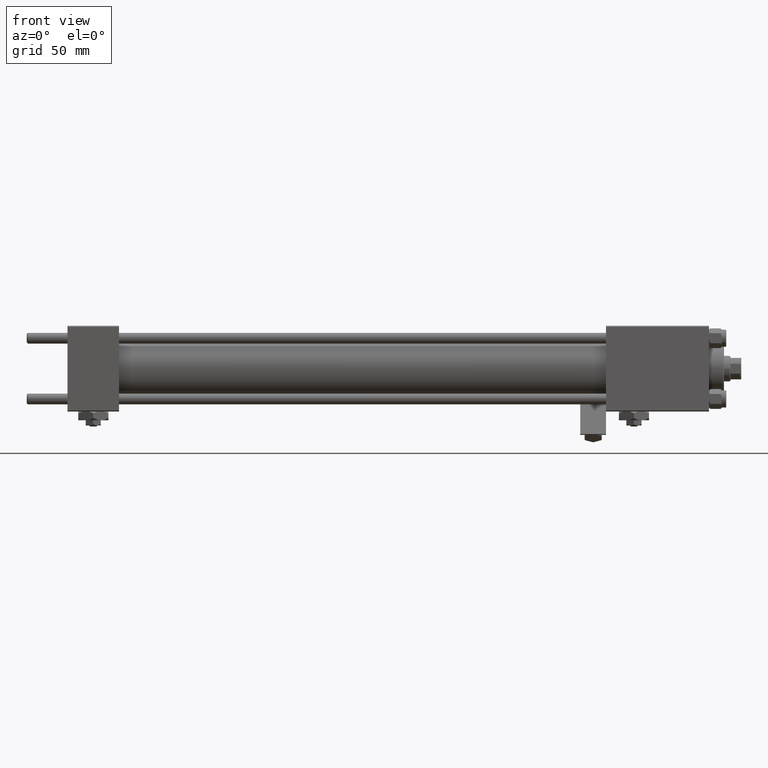
[diagram: clean part render]
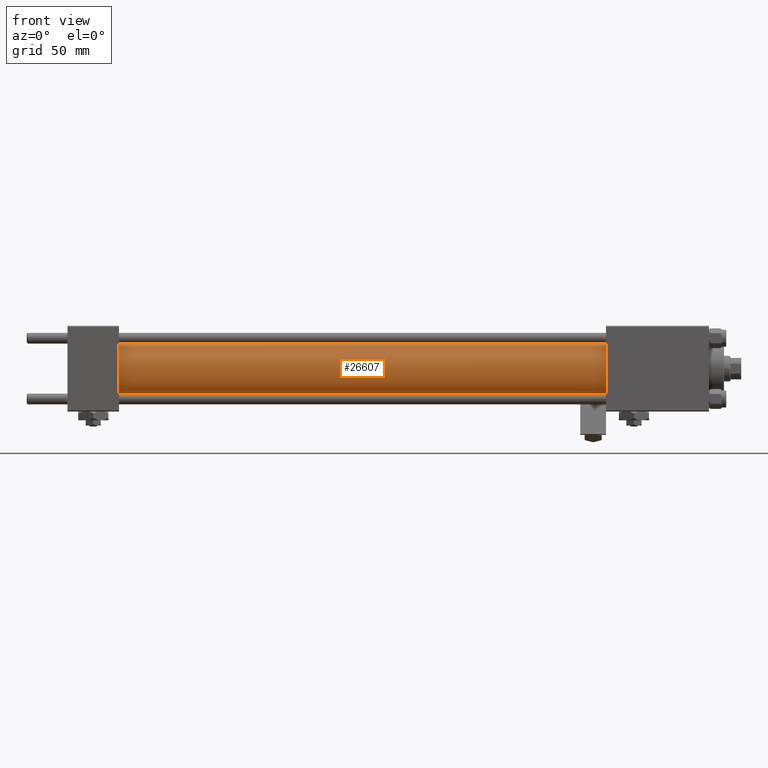
[diagram: same view with one face highlighted and labeled with its STEP entity id]
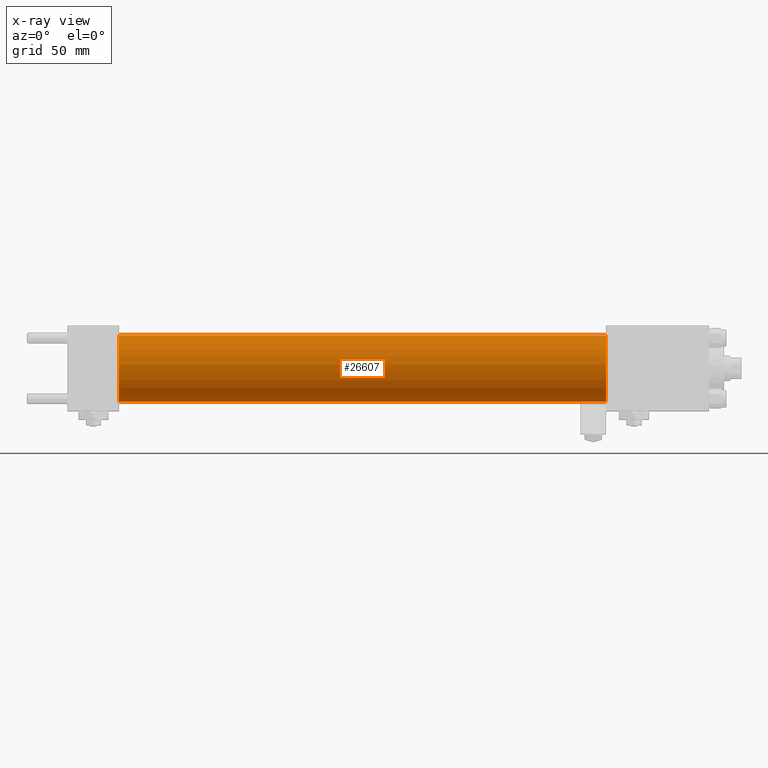
[diagram: x-ray of the same camera — body ghosted, the highlighted face saturated]
A machine part, front view. The second image highlights one B-rep face of the part: STEP entity #26607.
The next image is the same camera in x-ray: the body ghosted, the highlighted face saturated — about 0% of this face is hidden behind the body in this view.
In plain terms, the highlighted cylindrical surface (edge-blend (fillet) strip) has radius 15.5 mm, axis along (-1, -0, -0).
Its self-contained STEP definition (entity closure, byte-faithful):
#439 = LINE ( 'NONE', #24485, #38440 ) ;
#6293 = DIRECTION ( 'NONE',  ( -1.000000000000000000, -0.000000000000000000, -0.000000000000000000 ) ) ;
#6516 = EDGE_CURVE ( 'NONE', #49818, #9393, #47475, .T. ) ;
#9393 = VERTEX_POINT ( 'NONE', #49370 ) ;
#11260 = VERTEX_POINT ( 'NONE', #17286 ) ;
#12207 = CARTESIAN_POINT ( 'NONE',  ( 251.0000000000000000, 0.000000000000000000, 0.000000000000000000 ) ) ;
#13863 = AXIS2_PLACEMENT_3D ( 'NONE', #22351, #30610, #14604 ) ;
#14400 = AXIS2_PLACEMENT_3D ( 'NONE', #12207, #15950, #44780 ) ;
#14604 = DIRECTION ( 'NONE',  ( 0.000000000000000000, 0.000000000000000000, 1.000000000000000000 ) ) ;
#15950 = DIRECTION ( 'NONE',  ( -1.000000000000000000, -0.000000000000000000, -0.000000000000000000 ) ) ;
#16456 = ORIENTED_EDGE ( 'NONE', *, *, #6516, .F. ) ;
#16464 = ORIENTED_EDGE ( 'NONE', *, *, #31124, .T. ) ;
#16466 = DIRECTION ( 'NONE',  ( -1.000000000000000000, -0.000000000000000000, -0.000000000000000000 ) ) ;
#17286 = CARTESIAN_POINT ( 'NONE',  ( 23.99999999999999289, 0.000000000000000000, 15.50000000000000000 ) ) ;
#18178 = VERTEX_POINT ( 'NONE', #29552 ) ;
#20219 = CYLINDRICAL_SURFACE ( 'NONE', #14400, 15.50000000000000000 ) ;
#22351 = CARTESIAN_POINT ( 'NONE',  ( 23.99999999999999289, 0.000000000000000000, 0.000000000000000000 ) ) ;
#24485 = CARTESIAN_POINT ( 'NONE',  ( 251.0000000000000000, 1.898202538678397163E-15, -15.50000000000000000 ) ) ;
#25218 = DIRECTION ( 'NONE',  ( 1.000000000000000000, 0.000000000000000000, 0.000000000000000000 ) ) ;
#26607 = ADVANCED_FACE ( 'NONE', ( #28491 ), #20219, .T. ) ;
#28491 = FACE_OUTER_BOUND ( 'NONE', #44495, .T. ) ;
#29551 = AXIS2_PLACEMENT_3D ( 'NONE', #50051, #25218, #49780 ) ;
#29552 = CARTESIAN_POINT ( 'NONE',  ( 23.99999999999999289, 1.898202538678397163E-15, -15.50000000000000000 ) ) ;
#30610 = DIRECTION ( 'NONE',  ( 1.000000000000000000, 0.000000000000000000, 0.000000000000000000 ) ) ;
#31124 = EDGE_CURVE ( 'NONE', #49818, #11260, #34864, .T. ) ;
#34864 = LINE ( 'NONE', #46622, #48646 ) ;
#34996 = EDGE_CURVE ( 'NONE', #9393, #18178, #439, .T. ) ;
#35967 = ORIENTED_EDGE ( 'NONE', *, *, #37935, .T. ) ;
#37935 = EDGE_CURVE ( 'NONE', #11260, #18178, #39426, .T. ) ;
#38440 = VECTOR ( 'NONE', #16466, 1000.000000000000000 ) ;
#39426 = CIRCLE ( 'NONE', #13863, 15.50000000000000000 ) ;
#39693 = ORIENTED_EDGE ( 'NONE', *, *, #34996, .F. ) ;
#44495 = EDGE_LOOP ( 'NONE', ( #39693, #16456, #16464, #35967 ) ) ;
#44780 = DIRECTION ( 'NONE',  ( 0.000000000000000000, 0.000000000000000000, 1.000000000000000000 ) ) ;
#45705 = CARTESIAN_POINT ( 'NONE',  ( 251.0000000000000000, 0.000000000000000000, 15.50000000000000000 ) ) ;
#46622 = CARTESIAN_POINT ( 'NONE',  ( 251.0000000000000000, 0.000000000000000000, 15.50000000000000000 ) ) ;
#47475 = CIRCLE ( 'NONE', #29551, 15.50000000000000000 ) ;
#48646 = VECTOR ( 'NONE', #6293, 1000.000000000000000 ) ;
#49370 = CARTESIAN_POINT ( 'NONE',  ( 251.0000000000000000, 1.898202538678397163E-15, -15.50000000000000000 ) ) ;
#49780 = DIRECTION ( 'NONE',  ( 0.000000000000000000, 0.000000000000000000, -1.000000000000000000 ) ) ;
#49818 = VERTEX_POINT ( 'NONE', #45705 ) ;
#50051 = CARTESIAN_POINT ( 'NONE',  ( 251.0000000000000000, 0.000000000000000000, 0.000000000000000000 ) ) ;